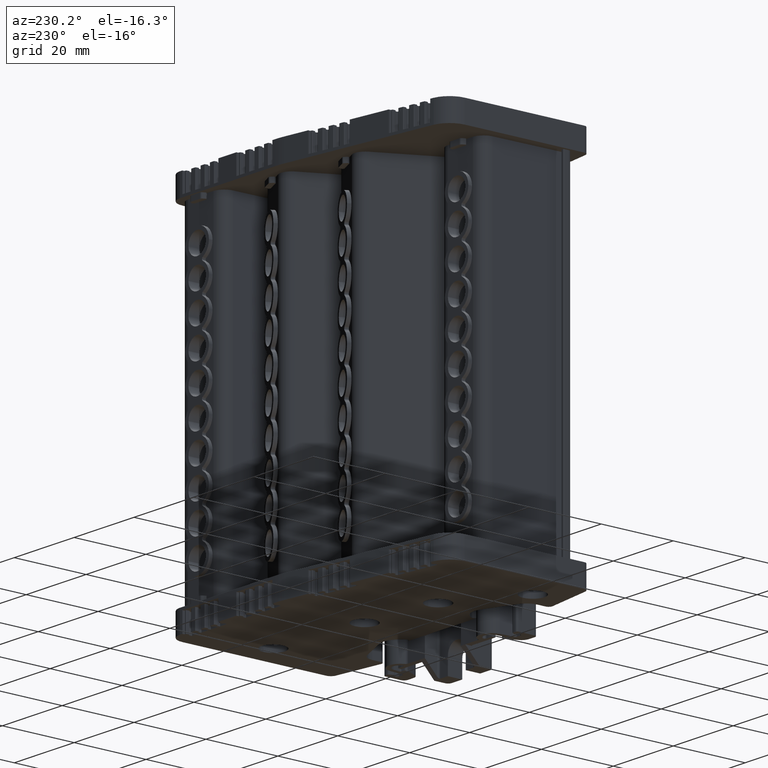
[diagram: clean part render]
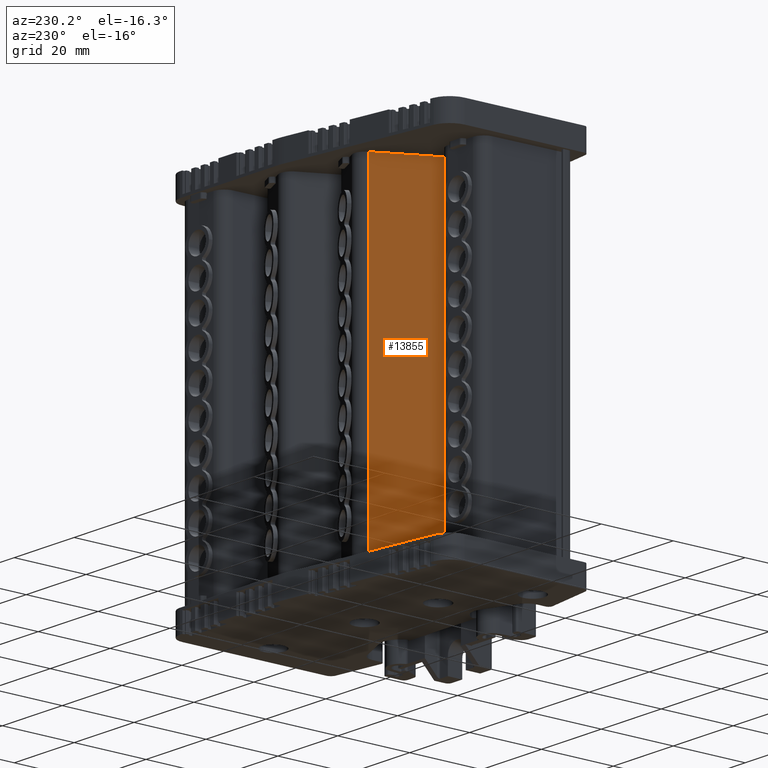
[diagram: same view with one face highlighted and labeled with its STEP entity id]
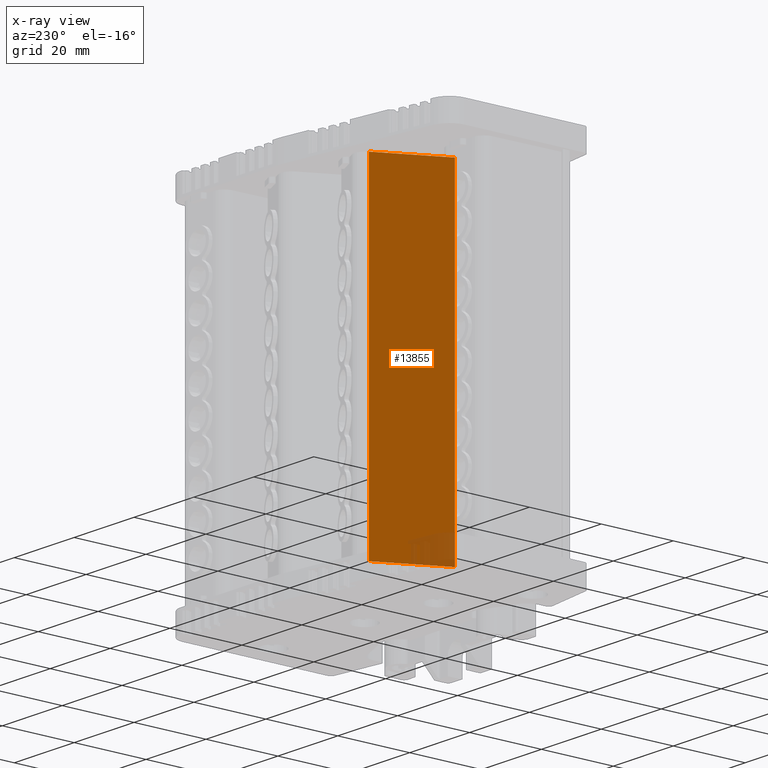
[diagram: x-ray of the same camera — body ghosted, the highlighted face saturated]
A machine part, auxiliary view. The second image highlights one B-rep face of the part: STEP entity #13855.
The next image is the same camera in x-ray: the body ghosted, the highlighted face saturated — about 4% of this face is hidden behind the body in this view.
In plain terms, the highlighted planar face has unit normal (0.8988, -0.4384, -0).
Its self-contained STEP definition (entity closure, byte-faithful):
#2730 = VECTOR ( 'NONE', #44750, 1000.000000000000000 ) ;
#2735 = VECTOR ( 'NONE', #44772, 1000.000000000000000 ) ;
#8388 = EDGE_CURVE ( 'NONE', #84195, #92994, #44786, .T. ) ;
#8401 = EDGE_CURVE ( 'NONE', #93021, #84173, #44780, .T. ) ;
#13143 = AXIS2_PLACEMENT_3D ( 'NONE', #19411, #19420, #19396 ) ;
#13855 = ADVANCED_FACE ( 'NONE', ( #19423 ), #19409, .F. ) ;
#14274 = VECTOR ( 'NONE', #21999, 1000.000000000000100 ) ;
#14781 = EDGE_CURVE ( 'NONE', #84173, #84195, #22006, .T. ) ;
#19396 = DIRECTION ( 'NONE',  ( 0.4383711467923799300, 0.8987940462975562200, 0.0000000000000000000 ) ) ;
#19409 = PLANE ( 'NONE',  #13143 ) ;
#19411 = CARTESIAN_POINT ( 'NONE',  ( 380.8960305409120800, -74.32249552683140300, 4.076850424354197400 ) ) ;
#19420 = DIRECTION ( 'NONE',  ( 0.8987940462975562200, -0.4383711467923799300, -4.851287140808294300E-013 ) ) ;
#19423 = FACE_OUTER_BOUND ( 'NONE', #23521, .T. ) ;
#21999 = DIRECTION ( 'NONE',  ( 0.4383711467923755400, 0.8987940462975583200, 0.0000000000000000000 ) ) ;
#22006 = LINE ( 'NONE', #22014, #14274 ) ;
#22014 = CARTESIAN_POINT ( 'NONE',  ( 370.8349548261819000, -94.95075771497090500, 5.094608000012101500 ) ) ;
#23521 = EDGE_LOOP ( 'NONE', ( #66838, #66917, #66860, #66906 ) ) ;
#29411 = EDGE_CURVE ( 'NONE', #92994, #93021, #35598, .T. ) ;
#35598 = LINE ( 'NONE', #35643, #39053 ) ;
#35643 = CARTESIAN_POINT ( 'NONE',  ( 380.8960305409522700, -74.32249552685101400, 96.29224815084037900 ) ) ;
#35645 = DIRECTION ( 'NONE',  ( -0.4383711467923799300, -0.8987940462975562200, -0.0000000000000000000 ) ) ;
#39053 = VECTOR ( 'NONE', #35645, 1000.000000000000100 ) ;
#44750 = DIRECTION ( 'NONE',  ( -4.360307999038389600E-013, 2.126664307335258000E-013, -1.000000000000000000 ) ) ;
#44756 = CARTESIAN_POINT ( 'NONE',  ( 379.1435341188773100, -77.91564567326372500, 17.27185042424081700 ) ) ;
#44772 = DIRECTION ( 'NONE',  ( 4.738806629544288900E-013, -1.350627111183752100E-013, 1.000000000000000000 ) ) ;
#44780 = LINE ( 'NONE', #44781, #2730 ) ;
#44781 = CARTESIAN_POINT ( 'NONE',  ( 370.8349548261834300, -94.95075771496728100, 4.076850424354197400 ) ) ;
#44786 = LINE ( 'NONE', #44756, #2735 ) ;
#66838 = ORIENTED_EDGE ( 'NONE', *, *, #8401, .F. ) ;
#66860 = ORIENTED_EDGE ( 'NONE', *, *, #8388, .F. ) ;
#66906 = ORIENTED_EDGE ( 'NONE', *, *, #14781, .F. ) ;
#66917 = ORIENTED_EDGE ( 'NONE', *, *, #29411, .F. ) ;
#84173 = VERTEX_POINT ( 'NONE', #106040 ) ;
#84195 = VERTEX_POINT ( 'NONE', #106137 ) ;
#92994 = VERTEX_POINT ( 'NONE', #111276 ) ;
#93021 = VERTEX_POINT ( 'NONE', #111320 ) ;
#106040 = CARTESIAN_POINT ( 'NONE',  ( 370.8349548261820100, -94.95075771497091900, 5.094608000012015300 ) ) ;
#106137 = CARTESIAN_POINT ( 'NONE',  ( 379.1435341188721400, -77.91564567326058500, 5.094608000012947000 ) ) ;
#111276 = CARTESIAN_POINT ( 'NONE',  ( 379.1435341189156800, -77.91564567327301900, 96.29224815084036500 ) ) ;
#111320 = CARTESIAN_POINT ( 'NONE',  ( 370.8349548262236200, -94.95075771498687800, 96.29224815084079100 ) ) ;